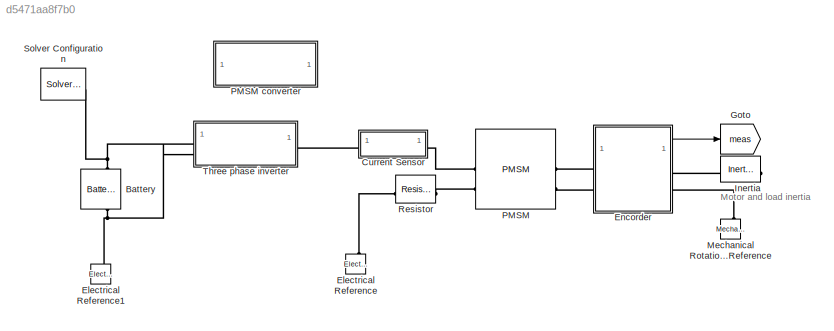
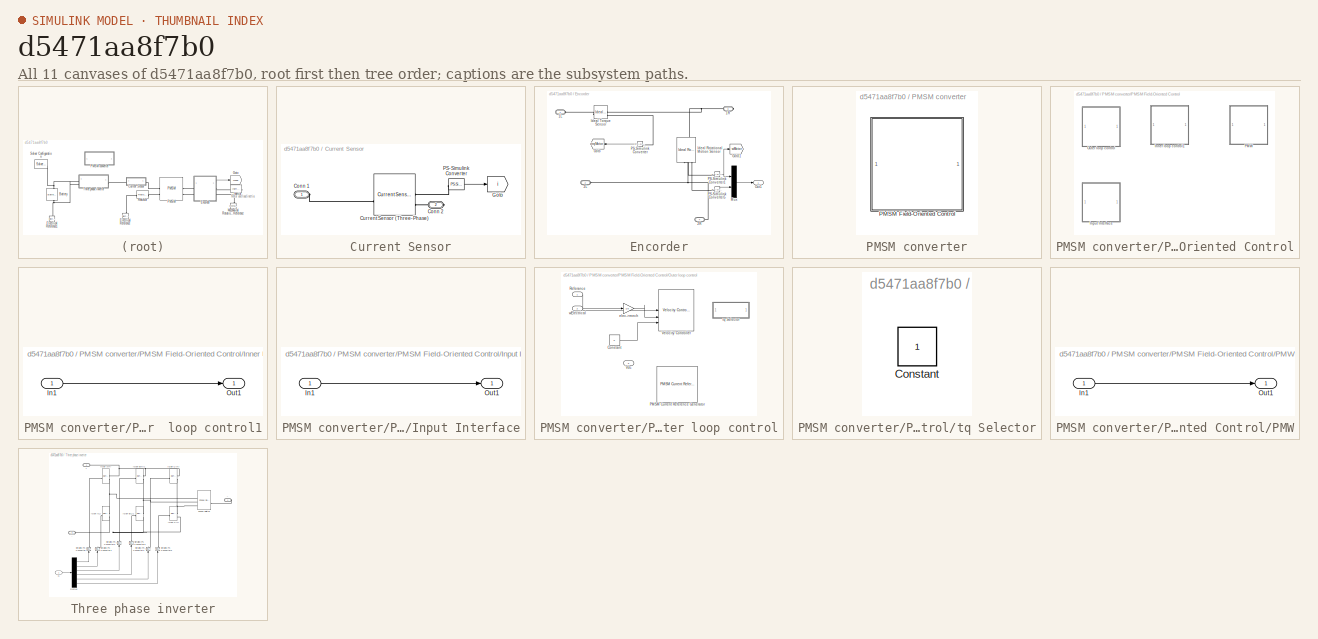
[diagram: thumbnail index - all 11 canvases of the model, root first then tree order]
MODEL slx_d5471aa8f7b0
KIND model
CONFIG AbsTol = auto
CONFIG EnableMultiTasking = off
CONFIG FixedStep = auto
CONFIG MaxStep = auto
CONFIG MinStep = auto
CONFIG RelTol = 1e-3
CONFIG SampleTimeConstraint = Unconstrained
CONFIG SolverName = VariableStepAuto
CONFIG StartTime = 0.0
CONFIG StopTime = 10.0
BLOCK [Reference] Battery  REF=batteryecm_lib/Battery
  LibrarySourceBlock = ee_lib/Sources/Battery
  NameLocation = right
  SourceBlock = batteryecm_lib/Battery
  SourceType = Battery
BLOCK [SubSystem] Current Sensor
BLOCK [PMIOPort] Current Sensor/Conn 1
  Side = Left
BLOCK [PMIOPort] Current Sensor/Conn 2
  NameLocation = top
  Port = 2
  Side = Right
BLOCK [Reference] Current Sensor/Current Sensor (Three-Phase)  REF=ee_lib/Sensors &
Transducers/Current Sensor
(Three-Phase)
  SourceBlock = ee_lib/Sensors &\nTransducers/Current Sensor\n(Three-Phase)
  SourceType = Current Sensor\n(Three-Phase)
BLOCK [Goto] Current Sensor/Goto
  GotoTag = i
  TagVisibility = global
BLOCK [Reference] Current Sensor/PS-Simulink Converter  REF=nesl_utility/PS-Simulink
Converter
  SourceBlock = nesl_utility/PS-Simulink\nConverter
  SourceType = PS-Simulink\nConverter
BLOCK [Reference] Electrical Reference  REF=fl_lib/Electrical/Electrical Elements/Electrical Reference
  NameLocation = right
  SourceBlock = fl_lib/Electrical/Electrical Elements/Electrical Reference
  SourceType = Electrical Reference
BLOCK [Reference] Electrical Reference1  REF=fl_lib/Electrical/Electrical Elements/Electrical Reference
  NameLocation = right
  SourceBlock = fl_lib/Electrical/Electrical Elements/Electrical Reference
  SourceType = Electrical Reference
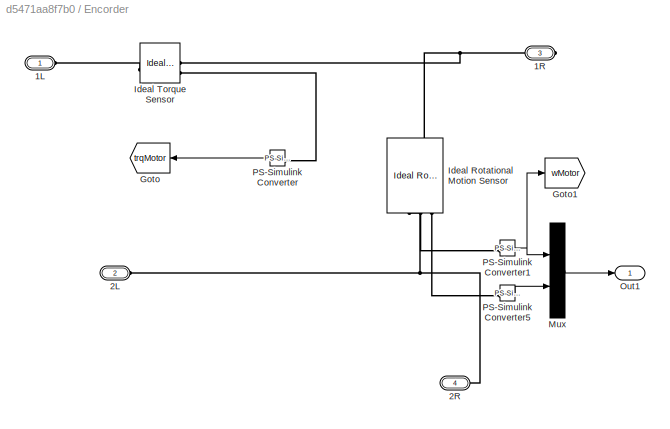
BLOCK [SubSystem] Encorder
BLOCK [PMIOPort] Encorder/ 2L
  Port = 2
  Side = Left
BLOCK [PMIOPort] Encorder/1L
  Side = Left
BLOCK [PMIOPort] Encorder/1R
  NameLocation = top
  Port = 3
  Side = Right
BLOCK [PMIOPort] Encorder/2R
  NameLocation = top
  Port = 4
  Side = Right
BLOCK [Goto] Encorder/Goto
  GotoTag = trqMotor
  NameLocation = top
  TagVisibility = global
BLOCK [Goto] Encorder/Goto1
  GotoTag = wMotor
  TagVisibility = global
BLOCK [Reference] Encorder/Ideal Rotational Motion Sensor  REF=fl_lib/Mechanical/Mechanical Sensors/Ideal Rotational
Motion Sensor
  NameLocation = left
  SourceBlock = fl_lib/Mechanical/Mechanical Sensors/Ideal Rotational\nMotion Sensor
  SourceType = Ideal Rotational\nMotion Sensor
BLOCK [Reference] Encorder/Ideal Torque Sensor  REF=fl_lib/Mechanical/Mechanical Sensors/Ideal Torque Sensor
  SourceBlock = fl_lib/Mechanical/Mechanical Sensors/Ideal Torque Sensor
  SourceType = Ideal Torque Sensor
BLOCK [Mux] Encorder/Mux
  DisplayOption = bar
  Inputs = 2
BLOCK [Outport] Encorder/Out1
BLOCK [Reference] Encorder/PS-Simulink Converter  REF=nesl_utility/PS-Simulink
Converter
  NameLocation = top
  SourceBlock = nesl_utility/PS-Simulink\nConverter
  SourceType = PS-Simulink\nConverter
BLOCK [Reference] Encorder/PS-Simulink Converter1  REF=nesl_utility/PS-Simulink
Converter
  SourceBlock = nesl_utility/PS-Simulink\nConverter
  SourceType = PS-Simulink\nConverter
BLOCK [Reference] Encorder/PS-Simulink Converter5  REF=nesl_utility/PS-Simulink
Converter
  SourceBlock = nesl_utility/PS-Simulink\nConverter
  SourceType = PS-Simulink\nConverter
BLOCK [Goto] Goto
  GotoTag = meas
  TagVisibility = global
BLOCK [Reference] Inertia  REF=fl_lib/Mechanical/Rotational Elements/Inertia
  SourceBlock = fl_lib/Mechanical/Rotational Elements/Inertia
  SourceType = Inertia
BLOCK [Reference] Mechanical Rotational Reference  REF=fl_lib/Mechanical/Rotational Elements/Mechanical
Rotational Reference
  NameLocation = right
  SourceBlock = fl_lib/Mechanical/Rotational Elements/Mechanical\nRotational Reference
  SourceType = Mechanical\nRotational Reference
BLOCK [Reference] PMSM  REF=ee_lib/Electromechanical/Permanent Magnet/PMSM
  SourceBlock = ee_lib/Electromechanical/Permanent Magnet/PMSM
  SourceType = PMSM
BLOCK [SubSystem] PMSM converter
BLOCK [SubSystem] PMSM converter/PMSM Field-Oriented Control
BLOCK [SubSystem] PMSM converter/PMSM Field-Oriented Control/Inner  loop control1
BLOCK [Inport] PMSM converter/PMSM Field-Oriented Control/Inner  loop control1/In1
BLOCK [Outport] PMSM converter/PMSM Field-Oriented Control/Inner  loop control1/Out1
BLOCK [SubSystem] PMSM converter/PMSM Field-Oriented Control/Input Interface
BLOCK [Inport] PMSM converter/PMSM Field-Oriented Control/Input Interface/In1
BLOCK [Outport] PMSM converter/PMSM Field-Oriented Control/Input Interface/Out1
BLOCK [SubSystem] PMSM converter/PMSM Field-Oriented Control/Outer loop control
BLOCK [Constant] PMSM converter/PMSM Field-Oriented Control/Outer loop control/Constant
  Value = 0
BLOCK [Reference] PMSM converter/PMSM Field-Oriented Control/Outer loop control/PMSM Current Reference Generator  REF=eePmsmCurrentReferenceGen/PMSM Current Reference
Generator
  LibrarySourceBlock = ee_sl_lib/PMSM Control/PMSM Current Reference\nGenerator
  SourceBlock = eePmsmCurrentReferenceGen/PMSM Current Reference\nGenerator
  SourceType = PMSM Current Reference Generator
BLOCK [Inport] PMSM converter/PMSM Field-Oriented Control/Outer loop control/Referance
BLOCK [Inport] PMSM converter/PMSM Field-Oriented Control/Outer loop control/Vdc
  Port = 3
BLOCK [Reference] PMSM converter/PMSM Field-Oriented Control/Outer loop control/Velocity Controller  REF=eeVelocityController/Velocity Controller
  LibrarySourceBlock = ee_sl_lib/General Machine\nControl/Velocity Controller
  SourceBlock = eeVelocityController/Velocity Controller
  SourceType = Velocity Controller
BLOCK [Gain] PMSM converter/PMSM Field-Oriented Control/Outer loop control/elec->mech
  Gain = 1/p
BLOCK [SubSystem] PMSM converter/PMSM Field-Oriented Control/Outer loop control/tq Selector
BLOCK [Constant] PMSM converter/PMSM Field-Oriented Control/Outer loop control/tq Selector/Constant
BLOCK [Inport] PMSM converter/PMSM Field-Oriented Control/Outer loop control/wElectrical
  Port = 2
BLOCK [SubSystem] PMSM converter/PMSM Field-Oriented Control/PMW
BLOCK [Inport] PMSM converter/PMSM Field-Oriented Control/PMW/In1
BLOCK [Outport] PMSM converter/PMSM Field-Oriented Control/PMW/Out1
BLOCK [Reference] Resistor  REF=fl_lib/Electrical/Electrical Elements/Resistor
  SourceBlock = fl_lib/Electrical/Electrical Elements/Resistor
  SourceType = Resistor
BLOCK [Reference] Solver Configuration  REF=nesl_utility/Solver
Configuration
  SourceBlock = nesl_utility/Solver\nConfiguration
  SourceType = Solver\nConfiguration
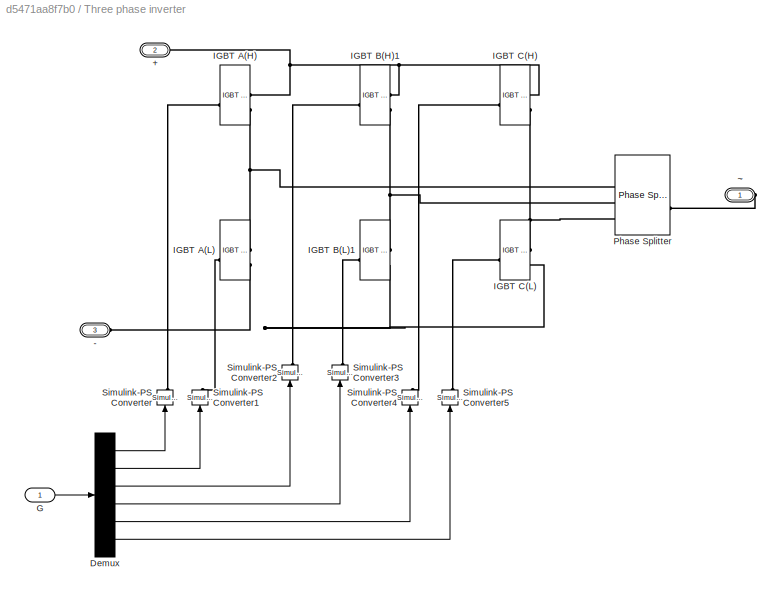
BLOCK [SubSystem] Three phase inverter
BLOCK [PMIOPort] Three phase inverter/+
  Port = 2
  Side = Left
BLOCK [PMIOPort] Three phase inverter/- 
  Port = 3
  Side = Left
BLOCK [Demux] Three phase inverter/Demux
  Outputs = 6
BLOCK [Inport] Three phase inverter/G
BLOCK [Reference] Three phase inverter/IGBT A(H)  REF=ee_lib/Semiconductors &
Converters/IGBT
(Ideal,
Switching)
  SourceBlock = ee_lib/Semiconductors &\nConverters/IGBT\n(Ideal,\nSwitching)
  SourceType = IGBT\n(Ideal,\nSwitching)
BLOCK [Reference] Three phase inverter/IGBT A(L)  REF=ee_lib/Semiconductors &
Converters/IGBT
(Ideal,
Switching)
  SourceBlock = ee_lib/Semiconductors &\nConverters/IGBT\n(Ideal,\nSwitching)
  SourceType = IGBT\n(Ideal,\nSwitching)
BLOCK [Reference] Three phase inverter/IGBT B(H)1  REF=ee_lib/Semiconductors &
Converters/IGBT
(Ideal,
Switching)
  SourceBlock = ee_lib/Semiconductors &\nConverters/IGBT\n(Ideal,\nSwitching)
  SourceType = IGBT\n(Ideal,\nSwitching)
BLOCK [Reference] Three phase inverter/IGBT B(L)1  REF=ee_lib/Semiconductors &
Converters/IGBT
(Ideal,
Switching)
  SourceBlock = ee_lib/Semiconductors &\nConverters/IGBT\n(Ideal,\nSwitching)
  SourceType = IGBT\n(Ideal,\nSwitching)
BLOCK [Reference] Three phase inverter/IGBT C(H)  REF=ee_lib/Semiconductors &
Converters/IGBT
(Ideal,
Switching)
  SourceBlock = ee_lib/Semiconductors &\nConverters/IGBT\n(Ideal,\nSwitching)
  SourceType = IGBT\n(Ideal,\nSwitching)
BLOCK [Reference] Three phase inverter/IGBT C(L)  REF=ee_lib/Semiconductors &
Converters/IGBT
(Ideal,
Switching)
  SourceBlock = ee_lib/Semiconductors &\nConverters/IGBT\n(Ideal,\nSwitching)
  SourceType = IGBT\n(Ideal,\nSwitching)
BLOCK [Reference] Three phase inverter/Phase Splitter  REF=ee_lib/Connectors &
References/Phase Splitter
  NameLocation = top
  SourceBlock = ee_lib/Connectors &\nReferences/Phase Splitter
  SourceType = Phase Splitter
BLOCK [Reference] Three phase inverter/Simulink-PS Converter  REF=nesl_utility/Simulink-PS
Converter
  NameLocation = right
  SourceBlock = nesl_utility/Simulink-PS\nConverter
  SourceType = Simulink-PS\nConverter
BLOCK [Reference] Three phase inverter/Simulink-PS Converter1  REF=nesl_utility/Simulink-PS
Converter
  NameLocation = right
  SourceBlock = nesl_utility/Simulink-PS\nConverter
  SourceType = Simulink-PS\nConverter
BLOCK [Reference] Three phase inverter/Simulink-PS Converter2  REF=nesl_utility/Simulink-PS
Converter
  NameLocation = right
  SourceBlock = nesl_utility/Simulink-PS\nConverter
  SourceType = Simulink-PS\nConverter
BLOCK [Reference] Three phase inverter/Simulink-PS Converter3  REF=nesl_utility/Simulink-PS
Converter
  NameLocation = right
  SourceBlock = nesl_utility/Simulink-PS\nConverter
  SourceType = Simulink-PS\nConverter
BLOCK [Reference] Three phase inverter/Simulink-PS Converter4  REF=nesl_utility/Simulink-PS
Converter
  NameLocation = right
  SourceBlock = nesl_utility/Simulink-PS\nConverter
  SourceType = Simulink-PS\nConverter
BLOCK [Reference] Three phase inverter/Simulink-PS Converter5  REF=nesl_utility/Simulink-PS
Converter
  NameLocation = right
  SourceBlock = nesl_utility/Simulink-PS\nConverter
  SourceType = Simulink-PS\nConverter
BLOCK [PMIOPort] Three phase inverter/~
  NameLocation = top
  Side = Right
ANNOTATION (root): Motor and load inertia
LINE Current Sensor/PS-Simulink Converter:1 -> Current Sensor/Goto:1
LINE Encorder/Mux:1 -> Encorder/Out1:1
NET Encorder/PS-Simulink Converter1:1 -> Encorder/Goto1:1, Encorder/Mux:1
LINE Encorder/PS-Simulink Converter5:1 -> Encorder/Mux:2
LINE Encorder/PS-Simulink Converter:1 -> Encorder/Goto:1
LINE Encorder:1 -> Goto:1
LINE PMSM converter/PMSM Field-Oriented Control/Inner  loop control1/In1:1 -> PMSM converter/PMSM Field-Oriented Control/Inner  loop control1/Out1:1
LINE PMSM converter/PMSM Field-Oriented Control/Input Interface/In1:1 -> PMSM converter/PMSM Field-Oriented Control/Input Interface/Out1:1
LINE PMSM converter/PMSM Field-Oriented Control/Outer loop control/Constant:1 -> PMSM converter/PMSM Field-Oriented Control/Outer loop control/Velocity Controller:4
LINE PMSM converter/PMSM Field-Oriented Control/Outer loop control/Referance:1 -> PMSM converter/PMSM Field-Oriented Control/Outer loop control/Velocity Controller:1
LINE PMSM converter/PMSM Field-Oriented Control/Outer loop control/elec->mech:1 -> PMSM converter/PMSM Field-Oriented Control/Outer loop control/Velocity Controller:2
LINE PMSM converter/PMSM Field-Oriented Control/Outer loop control/wElectrical:1 -> PMSM converter/PMSM Field-Oriented Control/Outer loop control/elec->mech:1
LINE PMSM converter/PMSM Field-Oriented Control/PMW/In1:1 -> PMSM converter/PMSM Field-Oriented Control/PMW/Out1:1
LINE Three phase inverter/Demux:1 -> Three phase inverter/Simulink-PS Converter:1
LINE Three phase inverter/Demux:2 -> Three phase inverter/Simulink-PS Converter1:1
LINE Three phase inverter/Demux:3 -> Three phase inverter/Simulink-PS Converter2:1
LINE Three phase inverter/Demux:4 -> Three phase inverter/Simulink-PS Converter3:1
LINE Three phase inverter/Demux:5 -> Three phase inverter/Simulink-PS Converter4:1
LINE Three phase inverter/Demux:6 -> Three phase inverter/Simulink-PS Converter5:1
LINE Three phase inverter/G:1 -> Three phase inverter/Demux:1
PNET net1: Battery:LConn1 -- Solver Configuration:RConn1 -- Three phase inverter:LConn1
PNET net2: Battery:RConn1 -- Electrical Reference1:LConn1 -- Three phase inverter:LConn2
PLINE Current Sensor/Conn 1:RConn1 -- Current Sensor/Current Sensor (Three-Phase):LConn1
PLINE Current Sensor/Conn 2:RConn1 -- Current Sensor/Current Sensor (Three-Phase):RConn2
PLINE Current Sensor/Current Sensor (Three-Phase):RConn1 -- Current Sensor/PS-Simulink Converter:LConn1
PLINE Current Sensor:LConn1 -- Three phase inverter:RConn1
PLINE Current Sensor:RConn1 -- PMSM:LConn1
PLINE Electrical Reference:LConn1 -- Resistor:LConn1
PNET net3: Encorder/ 2L:RConn1 -- Encorder/2R:RConn1 -- Encorder/Ideal Rotational Motion Sensor:RConn1
PLINE Encorder/1L:RConn1 -- Encorder/Ideal Torque Sensor:LConn1
PNET net4: Encorder/1R:RConn1 -- Encorder/Ideal Rotational Motion Sensor:LConn1 -- Encorder/Ideal Torque Sensor:RConn1
PLINE Encorder/Ideal Rotational Motion Sensor:RConn2 -- Encorder/PS-Simulink Converter1:LConn1
PLINE Encorder/Ideal Rotational Motion Sensor:RConn3 -- Encorder/PS-Simulink Converter5:LConn1
PLINE Encorder/Ideal Torque Sensor:RConn2 -- Encorder/PS-Simulink Converter:LConn1
PLINE Encorder:LConn1 -- PMSM:RConn1
PLINE Encorder:LConn2 -- PMSM:RConn2
PLINE Encorder:RConn1 -- Inertia:LConn1
PLINE Encorder:RConn2 -- Mechanical Rotational Reference:LConn1
PLINE PMSM:LConn2 -- Resistor:RConn1
PNET net5: Three phase inverter/+:RConn1 -- Three phase inverter/IGBT A(H):RConn1 -- Three phase inverter/IGBT B(H)1:RConn1 -- Three phase inverter/IGBT C(H):RConn1
PNET net6: Three phase inverter/- :RConn1 -- Three phase inverter/IGBT A(L):RConn2 -- Three phase inverter/IGBT B(L)1:RConn2 -- Three phase inverter/IGBT C(L):RConn2
PLINE Three phase inverter/IGBT A(H):LConn1 -- Three phase inverter/Simulink-PS Converter:RConn1
PNET net7: Three phase inverter/IGBT A(H):RConn2 -- Three phase inverter/IGBT A(L):RConn1 -- Three phase inverter/Phase Splitter:RConn1
PLINE Three phase inverter/IGBT A(L):LConn1 -- Three phase inverter/Simulink-PS Converter1:RConn1
PLINE Three phase inverter/IGBT B(H)1:LConn1 -- Three phase inverter/Simulink-PS Converter2:RConn1
PNET net8: Three phase inverter/IGBT B(H)1:RConn2 -- Three phase inverter/IGBT B(L)1:RConn1 -- Three phase inverter/Phase Splitter:RConn2
PLINE Three phase inverter/IGBT B(L)1:LConn1 -- Three phase inverter/Simulink-PS Converter3:RConn1
PLINE Three phase inverter/IGBT C(H):LConn1 -- Three phase inverter/Simulink-PS Converter4:RConn1
PNET net9: Three phase inverter/IGBT C(H):RConn2 -- Three phase inverter/IGBT C(L):RConn1 -- Three phase inverter/Phase Splitter:RConn3
PLINE Three phase inverter/IGBT C(L):LConn1 -- Three phase inverter/Simulink-PS Converter5:RConn1
PLINE Three phase inverter/Phase Splitter:LConn1 -- Three phase inverter/~:RConn1
note: NET lines group one-source signal fan-out (src -> all destinations, sorted); 1:1 wires keep LINE; PNET lines group multi-terminal physical nets as a canonical sorted terminal list (undirected conserving connections); 2-terminal nets keep the pairwise PLINE form
